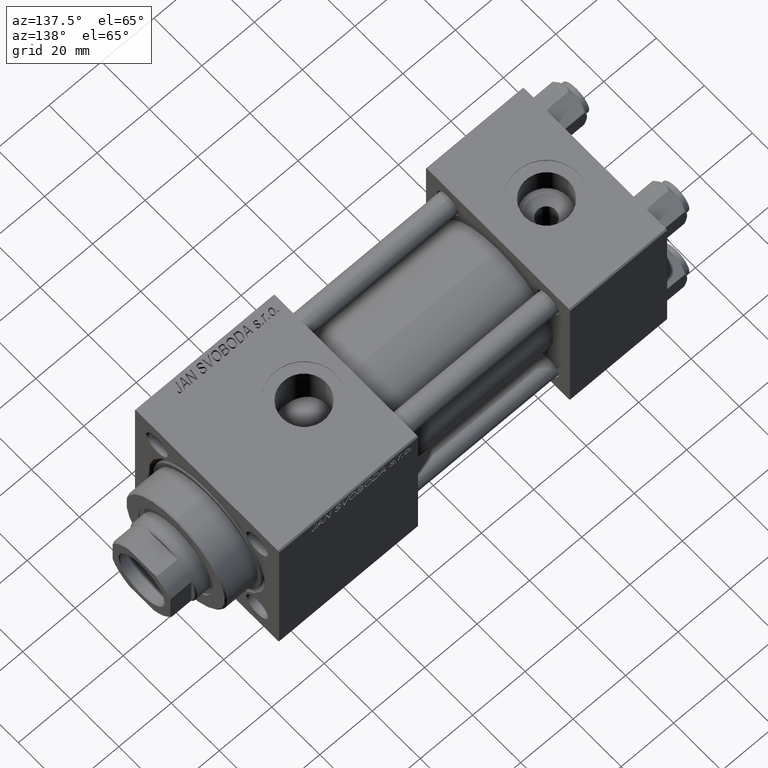
[diagram: clean part render]
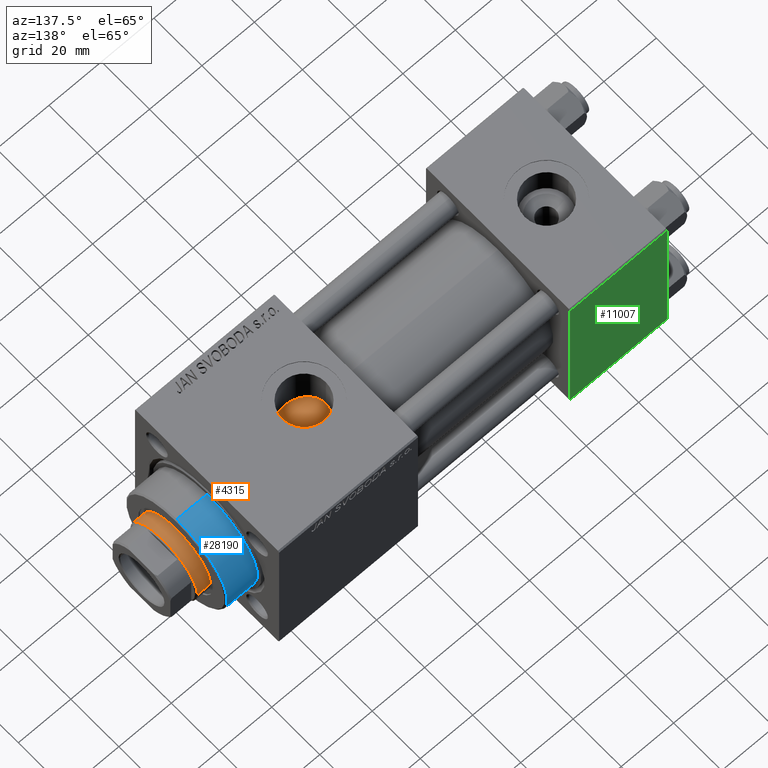
[diagram: same view with three faces highlighted in distinct colors, each labeled with its STEP entity id]
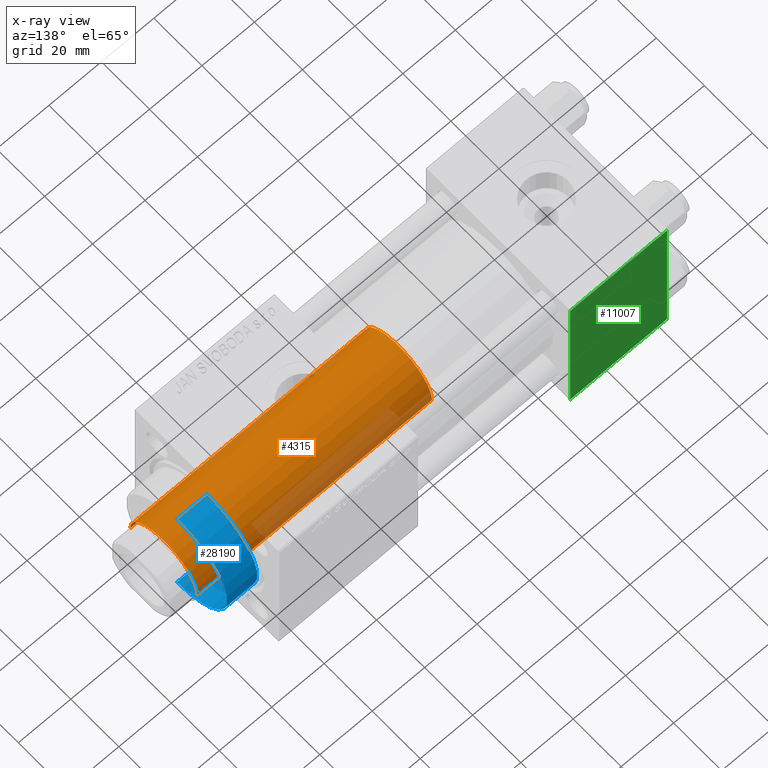
[diagram: x-ray of the same camera — body ghosted, the three highlighted faces saturated]
A machine part, auxiliary view with three faces highlighted in distinct colors.
The next image is the same camera in x-ray (body ghosted, the three faces saturated) — at least one of them is partly hidden behind the body in this view.
Their STEP definitions:

[orange] entity #4315 — the highlighted cylindrical surface (partial cylindrical patch) has radius 14 mm, axis along (-1, 0, 0).
#66 = CARTESIAN_POINT ( 'NONE',  ( 0.000000000000000000, 0.000000000000000000, 128.0000000000000000 ) ) ;
#4117 = EDGE_CURVE ( 'NONE', #47499, #8463, #24300, .T. ) ;
#4127 = EDGE_CURVE ( 'NONE', #9880, #8463, #11983, .T. ) ;
#4315 = ADVANCED_FACE ( 'NONE', ( #31587 ), #43954, .T. ) ;
#5217 = ORIENTED_EDGE ( 'NONE', *, *, #34715, .T. ) ;
#6948 = VECTOR ( 'NONE', #32429, 1000.000000000000000 ) ;
#7401 = CARTESIAN_POINT ( 'NONE',  ( -14.00000000000000178, 0.000000000000000000, 128.0000000000000000 ) ) ;
#8463 = VERTEX_POINT ( 'NONE', #36488 ) ;
#9557 = DIRECTION ( 'NONE',  ( 1.000000000000000000, 0.000000000000000000, 0.000000000000000000 ) ) ;
#9880 = VERTEX_POINT ( 'NONE', #30231 ) ;
#11617 = VERTEX_POINT ( 'NONE', #18570 ) ;
#11983 = CIRCLE ( 'NONE', #18687, 14.00000000000000178 ) ;
#12738 = DIRECTION ( 'NONE',  ( 0.000000000000000000, 0.000000000000000000, 1.000000000000000000 ) ) ;
#15909 = CARTESIAN_POINT ( 'NONE',  ( 14.00000000000000178, 1.714505518806294441E-15, 128.0000000000000000 ) ) ;
#18570 = CARTESIAN_POINT ( 'NONE',  ( -14.00000000000000178, 0.000000000000000000, 127.5000000000000853 ) ) ;
#18687 = AXIS2_PLACEMENT_3D ( 'NONE', #33458, #12738, #9557 ) ;
#21371 = VECTOR ( 'NONE', #27089, 1000.000000000000000 ) ;
#21519 = AXIS2_PLACEMENT_3D ( 'NONE', #33417, #49695, #32646 ) ;
#22603 = ORIENTED_EDGE ( 'NONE', *, *, #4127, .T. ) ;
#24300 = LINE ( 'NONE', #15909, #6948 ) ;
#27089 = DIRECTION ( 'NONE',  ( -0.000000000000000000, -0.000000000000000000, -1.000000000000000000 ) ) ;
#27349 = LINE ( 'NONE', #7401, #21371 ) ;
#29237 = ORIENTED_EDGE ( 'NONE', *, *, #42856, .T. ) ;
#30231 = CARTESIAN_POINT ( 'NONE',  ( -14.00000000000000178, 0.000000000000000000, 38.00000000000000000 ) ) ;
#31309 = AXIS2_PLACEMENT_3D ( 'NONE', #66, #48145, #43697 ) ;
#31550 = CIRCLE ( 'NONE', #21519, 14.00000000000000178 ) ;
#31587 = FACE_OUTER_BOUND ( 'NONE', #36481, .T. ) ;
#32429 = DIRECTION ( 'NONE',  ( -0.000000000000000000, -0.000000000000000000, -1.000000000000000000 ) ) ;
#32646 = DIRECTION ( 'NONE',  ( 1.000000000000000000, 0.000000000000000000, 0.000000000000000000 ) ) ;
#33417 = CARTESIAN_POINT ( 'NONE',  ( 0.000000000000000000, 0.000000000000000000, 127.5000000000000853 ) ) ;
#33458 = CARTESIAN_POINT ( 'NONE',  ( 0.000000000000000000, 0.000000000000000000, 38.00000000000000000 ) ) ;
#34715 = EDGE_CURVE ( 'NONE', #11617, #9880, #27349, .T. ) ;
#36481 = EDGE_LOOP ( 'NONE', ( #42446, #29237, #5217, #22603 ) ) ;
#36488 = CARTESIAN_POINT ( 'NONE',  ( 14.00000000000000178, 1.714505518806294441E-15, 38.00000000000000000 ) ) ;
#37258 = CARTESIAN_POINT ( 'NONE',  ( 14.00000000000000178, 1.714505518806294441E-15, 127.5000000000000853 ) ) ;
#42446 = ORIENTED_EDGE ( 'NONE', *, *, #4117, .F. ) ;
#42856 = EDGE_CURVE ( 'NONE', #47499, #11617, #31550, .T. ) ;
#43697 = DIRECTION ( 'NONE',  ( -1.000000000000000000, 0.000000000000000000, 0.000000000000000000 ) ) ;
#43954 = CYLINDRICAL_SURFACE ( 'NONE', #31309, 14.00000000000000178 ) ;
#47499 = VERTEX_POINT ( 'NONE', #37258 ) ;
#48145 = DIRECTION ( 'NONE',  ( -0.000000000000000000, -0.000000000000000000, -1.000000000000000000 ) ) ;
#49695 = DIRECTION ( 'NONE',  ( 0.000000000000000000, 0.000000000000000000, -1.000000000000000000 ) ) ;

[blue] entity #28190 — the highlighted cylindrical surface (partial cylindrical patch) has radius 21 mm, axis along (-1, -0, -0).
#855 = AXIS2_PLACEMENT_3D ( 'NONE', #22901, #21861, #26580 ) ;
#962 = DIRECTION ( 'NONE',  ( -0.000000000000000000, -0.000000000000000000, -1.000000000000000000 ) ) ;
#1039 = DIRECTION ( 'NONE',  ( 1.000000000000000000, 0.000000000000000000, 0.000000000000000000 ) ) ;
#2504 = VERTEX_POINT ( 'NONE', #44689 ) ;
#2887 = EDGE_LOOP ( 'NONE', ( #40671, #22168, #36772, #16853 ) ) ;
#4395 = VERTEX_POINT ( 'NONE', #29192 ) ;
#4459 = LINE ( 'NONE', #48845, #19888 ) ;
#9174 = DIRECTION ( 'NONE',  ( -0.000000000000000000, -0.000000000000000000, -1.000000000000000000 ) ) ;
#10560 = FACE_OUTER_BOUND ( 'NONE', #2887, .T. ) ;
#11083 = CYLINDRICAL_SURFACE ( 'NONE', #855, 21.00000000000000000 ) ;
#16853 = ORIENTED_EDGE ( 'NONE', *, *, #20505, .F. ) ;
#17393 = VECTOR ( 'NONE', #962, 1000.000000000000000 ) ;
#17505 = LINE ( 'NONE', #33257, #17393 ) ;
#17709 = VERTEX_POINT ( 'NONE', #39583 ) ;
#19888 = VECTOR ( 'NONE', #9174, 1000.000000000000000 ) ;
#20505 = EDGE_CURVE ( 'NONE', #40705, #4395, #4459, .T. ) ;
#21861 = DIRECTION ( 'NONE',  ( -0.000000000000000000, -0.000000000000000000, -1.000000000000000000 ) ) ;
#22051 = EDGE_CURVE ( 'NONE', #17709, #2504, #17505, .T. ) ;
#22166 = CIRCLE ( 'NONE', #29717, 21.00000000000000000 ) ;
#22168 = ORIENTED_EDGE ( 'NONE', *, *, #22051, .T. ) ;
#22901 = CARTESIAN_POINT ( 'NONE',  ( 0.000000000000000000, 0.000000000000000000, 40.70000000000000284 ) ) ;
#23277 = DIRECTION ( 'NONE',  ( 0.000000000000000000, 0.000000000000000000, -1.000000000000000000 ) ) ;
#26580 = DIRECTION ( 'NONE',  ( -1.000000000000000000, 0.000000000000000000, 0.000000000000000000 ) ) ;
#28190 = ADVANCED_FACE ( 'NONE', ( #10560 ), #11083, .T. ) ;
#29192 = CARTESIAN_POINT ( 'NONE',  ( -21.00000000000000000, 0.000000000000000000, 28.69999999999999929 ) ) ;
#29717 = AXIS2_PLACEMENT_3D ( 'NONE', #49115, #45178, #1039 ) ;
#33257 = CARTESIAN_POINT ( 'NONE',  ( 21.00000000000000000, 2.571758278209441661E-15, 40.70000000000000284 ) ) ;
#33476 = EDGE_CURVE ( 'NONE', #40705, #17709, #44001, .T. ) ;
#33710 = EDGE_CURVE ( 'NONE', #2504, #4395, #22166, .T. ) ;
#36772 = ORIENTED_EDGE ( 'NONE', *, *, #33710, .T. ) ;
#39583 = CARTESIAN_POINT ( 'NONE',  ( 21.00000000000000000, 2.571758278209441661E-15, 40.19999999999998863 ) ) ;
#40671 = ORIENTED_EDGE ( 'NONE', *, *, #33476, .T. ) ;
#40705 = VERTEX_POINT ( 'NONE', #50004 ) ;
#42718 = DIRECTION ( 'NONE',  ( 1.000000000000000000, 0.000000000000000000, 0.000000000000000000 ) ) ;
#44001 = CIRCLE ( 'NONE', #48189, 21.00000000000000000 ) ;
#44689 = CARTESIAN_POINT ( 'NONE',  ( 21.00000000000000000, 2.571758278209441661E-15, 28.69999999999999929 ) ) ;
#45178 = DIRECTION ( 'NONE',  ( 0.000000000000000000, 0.000000000000000000, 1.000000000000000000 ) ) ;
#48189 = AXIS2_PLACEMENT_3D ( 'NONE', #51378, #23277, #42718 ) ;
#48845 = CARTESIAN_POINT ( 'NONE',  ( -21.00000000000000000, 0.000000000000000000, 40.70000000000000284 ) ) ;
#49115 = CARTESIAN_POINT ( 'NONE',  ( 0.000000000000000000, 0.000000000000000000, 28.69999999999999929 ) ) ;
#50004 = CARTESIAN_POINT ( 'NONE',  ( -21.00000000000000000, 0.000000000000000000, 40.19999999999998863 ) ) ;
#51378 = CARTESIAN_POINT ( 'NONE',  ( 0.000000000000000000, 0.000000000000000000, 40.19999999999998863 ) ) ;

[green] entity #11007 — the highlighted planar face has unit normal (0, 1, 0).
#299 = LINE ( 'NONE', #35776, #40164 ) ;
#1566 = VECTOR ( 'NONE', #21747, 1000.000000000000000 ) ;
#2288 = EDGE_CURVE ( 'NONE', #29753, #24301, #30650, .T. ) ;
#3080 = DIRECTION ( 'NONE',  ( 0.000000000000000000, 0.000000000000000000, -1.000000000000000000 ) ) ;
#4093 = DIRECTION ( 'NONE',  ( 0.000000000000000000, -0.000000000000000000, 1.000000000000000000 ) ) ;
#4131 = EDGE_CURVE ( 'NONE', #22798, #42289, #32688, .T. ) ;
#4508 = DIRECTION ( 'NONE',  ( 1.000000000000000000, 0.000000000000000000, 0.000000000000000000 ) ) ;
#5730 = LINE ( 'NONE', #10704, #1566 ) ;
#10704 = CARTESIAN_POINT ( 'NONE',  ( 37.00000000000000000, 29.99999999999999289, -29.50000000000000000 ) ) ;
#11007 = ADVANCED_FACE ( 'NONE', ( #15915 ), #47449, .T. ) ;
#15661 = CARTESIAN_POINT ( 'NONE',  ( 37.00000000000000000, 29.99999999999999289, 30.00000000000000000 ) ) ;
#15915 = FACE_OUTER_BOUND ( 'NONE', #16204, .T. ) ;
#16204 = EDGE_LOOP ( 'NONE', ( #21586, #48268, #43625, #21645 ) ) ;
#17448 = CARTESIAN_POINT ( 'NONE',  ( 0.000000000000000000, 29.99999999999999289, 30.00000000000000000 ) ) ;
#18647 = VECTOR ( 'NONE', #3080, 1000.000000000000000 ) ;
#20298 = CARTESIAN_POINT ( 'NONE',  ( 0.000000000000000000, 29.99999999999999289, 29.50000000000000000 ) ) ;
#21337 = AXIS2_PLACEMENT_3D ( 'NONE', #15661, #39566, #4093 ) ;
#21586 = ORIENTED_EDGE ( 'NONE', *, *, #2288, .T. ) ;
#21645 = ORIENTED_EDGE ( 'NONE', *, *, #25567, .T. ) ;
#21747 = DIRECTION ( 'NONE',  ( -1.000000000000000000, 0.000000000000000000, 0.000000000000000000 ) ) ;
#22798 = VERTEX_POINT ( 'NONE', #20298 ) ;
#24301 = VERTEX_POINT ( 'NONE', #47141 ) ;
#24929 = EDGE_CURVE ( 'NONE', #24301, #42289, #5730, .T. ) ;
#25397 = CARTESIAN_POINT ( 'NONE',  ( 0.000000000000000000, 29.99999999999999289, -29.50000000000000000 ) ) ;
#25567 = EDGE_CURVE ( 'NONE', #22798, #29753, #299, .T. ) ;
#25571 = DIRECTION ( 'NONE',  ( 0.000000000000000000, 0.000000000000000000, -1.000000000000000000 ) ) ;
#29753 = VERTEX_POINT ( 'NONE', #32261 ) ;
#30650 = LINE ( 'NONE', #34078, #18647 ) ;
#32261 = CARTESIAN_POINT ( 'NONE',  ( 37.00000000000000000, 29.99999999999999289, 29.50000000000000000 ) ) ;
#32688 = LINE ( 'NONE', #17448, #48042 ) ;
#34078 = CARTESIAN_POINT ( 'NONE',  ( 37.00000000000000000, 29.99999999999999289, 30.00000000000000000 ) ) ;
#35776 = CARTESIAN_POINT ( 'NONE',  ( 37.00000000000000000, 29.99999999999999289, 29.50000000000000000 ) ) ;
#39566 = DIRECTION ( 'NONE',  ( -0.000000000000000000, 1.000000000000000000, 0.000000000000000000 ) ) ;
#40164 = VECTOR ( 'NONE', #4508, 1000.000000000000000 ) ;
#42289 = VERTEX_POINT ( 'NONE', #25397 ) ;
#43625 = ORIENTED_EDGE ( 'NONE', *, *, #4131, .F. ) ;
#47141 = CARTESIAN_POINT ( 'NONE',  ( 37.00000000000000000, 29.99999999999999289, -29.50000000000000000 ) ) ;
#47449 = PLANE ( 'NONE',  #21337 ) ;
#48042 = VECTOR ( 'NONE', #25571, 1000.000000000000000 ) ;
#48268 = ORIENTED_EDGE ( 'NONE', *, *, #24929, .T. ) ;